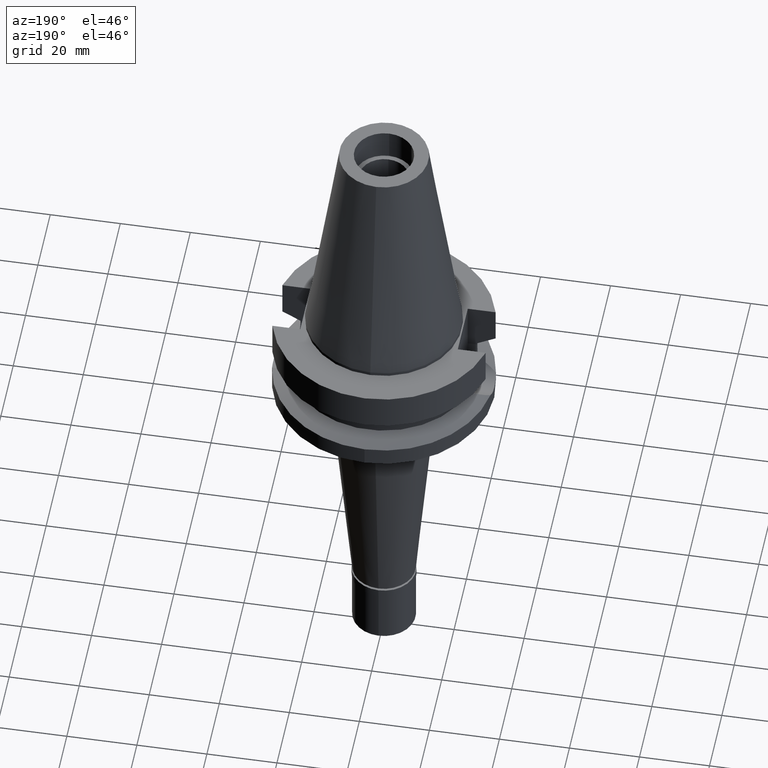
[diagram: clean part render]
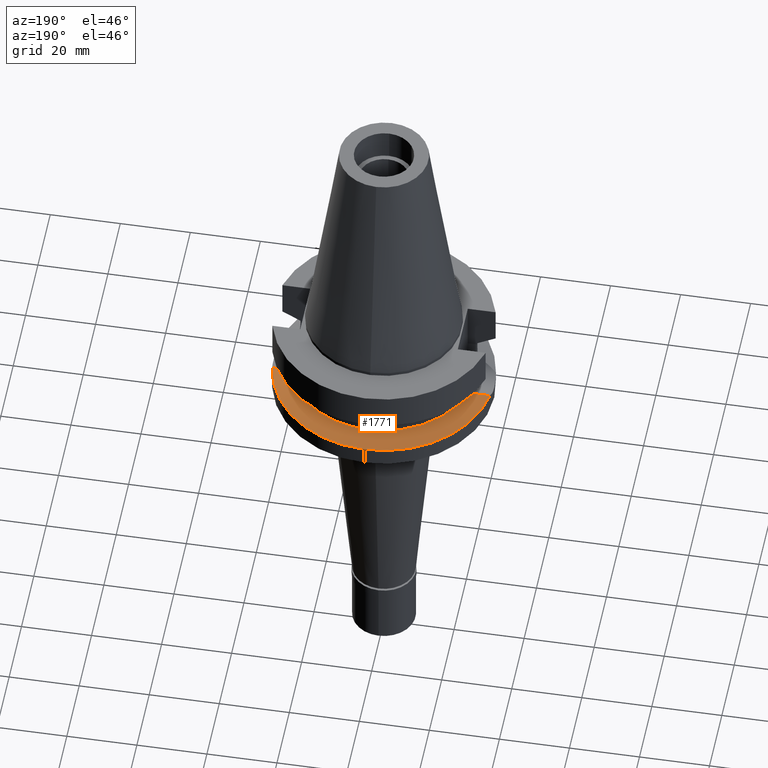
[diagram: same view with one face highlighted and labeled with its STEP entity id]
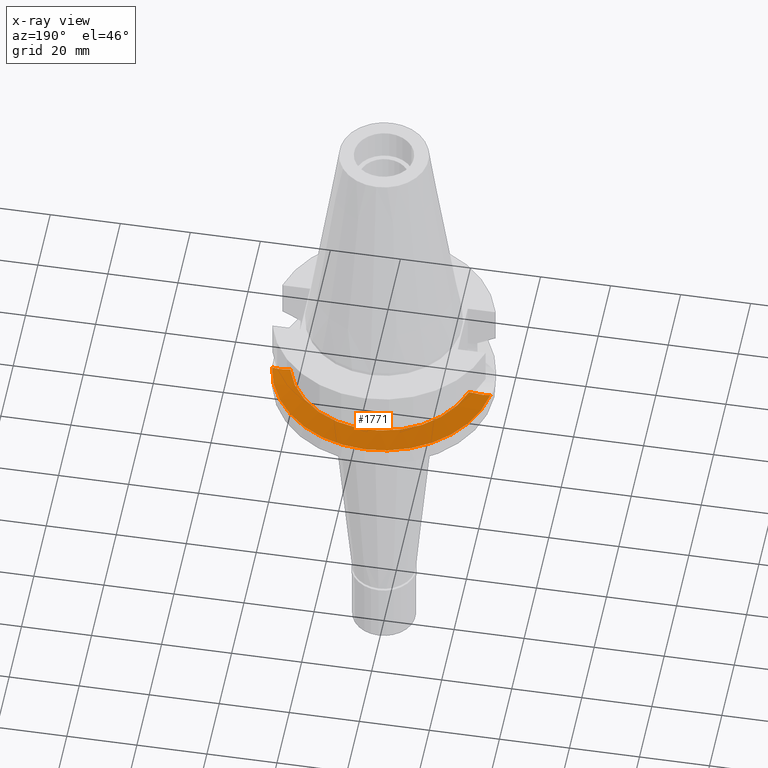
[diagram: x-ray of the same camera — body ghosted, the highlighted face saturated]
A machine part, auxiliary view. The second image highlights one B-rep face of the part: STEP entity #1771.
The next image is the same camera in x-ray: the body ghosted, the highlighted face saturated — about 0% of this face is hidden behind the body in this view.
In plain terms, the highlighted conical surface has half-angle 60 deg.
Its self-contained STEP definition (entity closure, byte-faithful):
#88 = VERTEX_POINT ( 'NONE', #638 ) ;
#92 = CIRCLE ( 'NONE', #541, 26.49999999999998224 ) ;
#197 = CARTESIAN_POINT ( 'NONE',  ( -28.71648563950253674, 5.944422265901891933, -20.37887722414544811 ) ) ;
#207 = CARTESIAN_POINT ( 'NONE',  ( 28.07572214132303756, 6.230373681821233411, -20.05063237837628165 ) ) ;
#252 = CARTESIAN_POINT ( 'NONE',  ( -30.52789725707967960, 4.979506543283549469, -21.30302249628849509 ) ) ;
#376 = EDGE_CURVE ( 'NONE', #88, #852, #92, .T. ) ;
#397 = DIRECTION ( 'NONE',  ( 0.0000000000000000000, 0.0000000000000000000, 1.000000000000000000 ) ) ;
#424 = CIRCLE ( 'NONE', #1519, 31.50000000000000000 ) ;
#541 = AXIS2_PLACEMENT_3D ( 'NONE', #2240, #397, #1517 ) ;
#612 = CARTESIAN_POINT ( 'NONE',  ( 27.47539476467945008, 6.466982623044537526, -19.74385774283430450 ) ) ;
#638 = CARTESIAN_POINT ( 'NONE',  ( 25.53175183775000079, 7.097862220092999941, -18.74774300138999905 ) ) ;
#650 = DIRECTION ( 'NONE',  ( 0.0000000000000000000, 1.000000000000000000, 0.0000000000000000000 ) ) ;
#657 = CARTESIAN_POINT ( 'NONE',  ( 30.47214116204992962, 5.021806944405266648, -21.27463740503836220 ) ) ;
#661 = ORIENTED_EDGE ( 'NONE', *, *, #376, .F. ) ;
#674 = EDGE_CURVE ( 'NONE', #852, #691, #2818, .T. ) ;
#691 = VERTEX_POINT ( 'NONE', #944 ) ;
#711 = CARTESIAN_POINT ( 'NONE',  ( -28.59620505019323389, 5.999973561500032915, -20.31745795808841137 ) ) ;
#731 = FACE_OUTER_BOUND ( 'NONE', #1452, .T. ) ;
#772 = CARTESIAN_POINT ( 'NONE',  ( 0.0000000000000000000, 31.50000000000000000, -21.63449434733000132 ) ) ;
#785 = CARTESIAN_POINT ( 'NONE',  ( 0.0000000000000000000, 0.0000000000000000000, -21.63449434733000132 ) ) ;
#829 = VERTEX_POINT ( 'NONE', #772 ) ;
#852 = VERTEX_POINT ( 'NONE', #2382 ) ;
#869 = CARTESIAN_POINT ( 'NONE',  ( 27.56040289885991257, 6.434537754508824037, -19.78728729292009803 ) ) ;
#882 = EDGE_CURVE ( 'NONE', #2649, #88, #2222, .T. ) ;
#897 = CONICAL_SURFACE ( 'NONE', #2093, 29.00000000000000000, 1.047197551196400456 ) ;
#925 = CARTESIAN_POINT ( 'NONE',  ( -25.53175183775000079, 7.097862220092999941, -18.74774300138999905 ) ) ;
#944 = CARTESIAN_POINT ( 'NONE',  ( -31.17899877608999759, 4.485536235554000051, -21.63449434733000132 ) ) ;
#1109 = CARTESIAN_POINT ( 'NONE',  ( 27.51115631491488855, 6.453366745058544574, -19.76212826123786215 ) ) ;
#1148 = CARTESIAN_POINT ( 'NONE',  ( 0.0000000000000000000, 0.0000000000000000000, -21.63449434733000132 ) ) ;
#1198 = ORIENTED_EDGE ( 'NONE', *, *, #1474, .F. ) ;
#1294 = CARTESIAN_POINT ( 'NONE',  ( 28.33956692745828931, 6.117353875388281459, -20.18553811981772483 ) ) ;
#1350 = CARTESIAN_POINT ( 'NONE',  ( 31.17899877608999759, 4.485536235554000051, -21.63449434733000132 ) ) ;
#1419 = CARTESIAN_POINT ( 'NONE',  ( 0.0000000000000000000, 0.0000000000000000000, -20.19111867435999841 ) ) ;
#1452 = EDGE_LOOP ( 'NONE', ( #2403, #661, #1898, #1198, #2545 ) ) ;
#1462 = DIRECTION ( 'NONE',  ( 0.0000000000000000000, 0.0000000000000000000, -1.000000000000000000 ) ) ;
#1474 = EDGE_CURVE ( 'NONE', #829, #2649, #424, .T. ) ;
#1517 = DIRECTION ( 'NONE',  ( 0.9634623335000935818, 0.2678438573619981722, 0.0000000000000000000 ) ) ;
#1519 = AXIS2_PLACEMENT_3D ( 'NONE', #1148, #2060, #650 ) ;
#1534 = CARTESIAN_POINT ( 'NONE',  ( 26.07165994012646948, 6.949450734449110989, -19.02511940010337455 ) ) ;
#1558 = CARTESIAN_POINT ( 'NONE',  ( 27.32439865501888576, 6.523975794452831600, -19.66670029666605046 ) ) ;
#1624 = CARTESIAN_POINT ( 'NONE',  ( -29.74515854124467751, 5.455020104115043900, -20.90420448390832320 ) ) ;
#1672 = AXIS2_PLACEMENT_3D ( 'NONE', #785, #2863, #2836 ) ;
#1742 = CARTESIAN_POINT ( 'NONE',  ( 29.61038509000944785, 5.536508629645276791, -20.83520327996791721 ) ) ;
#1771 = ADVANCED_FACE ( 'NONE', ( #731 ), #897, .T. ) ;
#1788 = CARTESIAN_POINT ( 'NONE',  ( -31.17899877608999759, 4.485536235554000051, -21.63449434733000132 ) ) ;
#1817 = CARTESIAN_POINT ( 'NONE',  ( -28.22954674274039988, 6.162401197541493403, -20.13018748449268003 ) ) ;
#1843 = CARTESIAN_POINT ( 'NONE',  ( -27.84944121722828569, 6.322251680877917224, -19.93595600255932965 ) ) ;
#1898 = ORIENTED_EDGE ( 'NONE', *, *, #882, .F. ) ;
#2027 = CARTESIAN_POINT ( 'NONE',  ( -26.16765249846851660, 6.923064025055520432, -19.07443533002514968 ) ) ;
#2036 = CARTESIAN_POINT ( 'NONE',  ( 27.64758152032065297, 6.401005496831164265, -19.83182735334971269 ) ) ;
#2060 = DIRECTION ( 'NONE',  ( 0.0000000000000000000, 0.0000000000000000000, -1.000000000000000000 ) ) ;
#2093 = AXIS2_PLACEMENT_3D ( 'NONE', #1419, #1462, #2604 ) ;
#2213 = CARTESIAN_POINT ( 'NONE',  ( 25.53175183775000079, 7.097862220092999941, -18.74774300138999905 ) ) ;
#2222 = B_SPLINE_CURVE_WITH_KNOTS ( 'NONE', 3,
 ( #1350, #657, #1742, #1294, #207, #2935, #2036, #869, #2652, #2268, #1109, #612, #1558, #2224, #2238, #1534, #2213 ),
 .UNSPECIFIED., .F., .F.,
 ( 4, 2, 2, 1, 2, 2, 1, 1, 2, 4 ),
 ( 0.0000000000000000000, 0.4999999999999994449, 0.6249999999999987788, 0.6562499999999984457, 0.6640624999999987788, 0.6679687499999990008, 0.6718749999999992228, 0.6874999999999988898, 0.7499999999999981126, 1.000000000000000000 ),
 .UNSPECIFIED. ) ;
#2224 = CARTESIAN_POINT ( 'NONE',  ( 27.17755436516426215, 6.577497836365636452, -19.59161001635130717 ) ) ;
#2238 = CARTESIAN_POINT ( 'NONE',  ( 26.58045409812886817, 6.788900028936905251, -19.28609013948052464 ) ) ;
#2240 = CARTESIAN_POINT ( 'NONE',  ( 0.0000000000000000000, 0.0000000000000000000, -18.74774300138999905 ) ) ;
#2259 = CARTESIAN_POINT ( 'NONE',  ( -27.58527975910611119, 6.426635300943065232, -19.80087409113595598 ) ) ;
#2268 = CARTESIAN_POINT ( 'NONE',  ( 27.52544574265341026, 6.447916733421728885, -19.76942844616368333 ) ) ;
#2382 = CARTESIAN_POINT ( 'NONE',  ( -25.53175183775000079, 7.097862220092999941, -18.74774300138999905 ) ) ;
#2403 = ORIENTED_EDGE ( 'NONE', *, *, #674, .F. ) ;
#2510 = EDGE_CURVE ( 'NONE', #691, #829, #2967, .T. ) ;
#2545 = ORIENTED_EDGE ( 'NONE', *, *, #2510, .F. ) ;
#2604 = DIRECTION ( 'NONE',  ( 0.0000000000000000000, -1.000000000000000000, 0.0000000000000000000 ) ) ;
#2649 = VERTEX_POINT ( 'NONE', #2920 ) ;
#2652 = CARTESIAN_POINT ( 'NONE',  ( 27.53419258691216598, 6.444575234375452766, -19.77389688587825844 ) ) ;
#2761 = CARTESIAN_POINT ( 'NONE',  ( -28.35355914096592045, 6.108571221816148089, -20.19353366524384441 ) ) ;
#2818 = B_SPLINE_CURVE_WITH_KNOTS ( 'NONE', 3,
 ( #925, #2027, #2962, #2259, #1843, #1817, #2761, #711, #197, #1624, #252, #1788 ),
 .UNSPECIFIED., .F., .F.,
 ( 4, 2, 2, 2, 2, 4 ),
 ( 0.0000000000000000000, 0.2499999999999993339, 0.3749999999999989453, 0.4374999999999984457, 0.4999999999999979461, 1.000000000000000000 ),
 .UNSPECIFIED. ) ;
#2836 = DIRECTION ( 'NONE',  ( -0.9898094849552905306, 0.1423979757318985240, 0.0000000000000000000 ) ) ;
#2863 = DIRECTION ( 'NONE',  ( 0.0000000000000000000, 0.0000000000000000000, -1.000000000000000000 ) ) ;
#2920 = CARTESIAN_POINT ( 'NONE',  ( 31.17899877608999759, 4.485536235554000051, -21.63449434733000132 ) ) ;
#2935 = CARTESIAN_POINT ( 'NONE',  ( 27.73381471662269959, 6.367106298263838227, -19.87589347898058989 ) ) ;
#2962 = CARTESIAN_POINT ( 'NONE',  ( -26.76052206139736711, 6.731278235311074276, -19.37864271265519633 ) ) ;
#2967 = CIRCLE ( 'NONE', #1672, 31.50000000000001421 ) ;